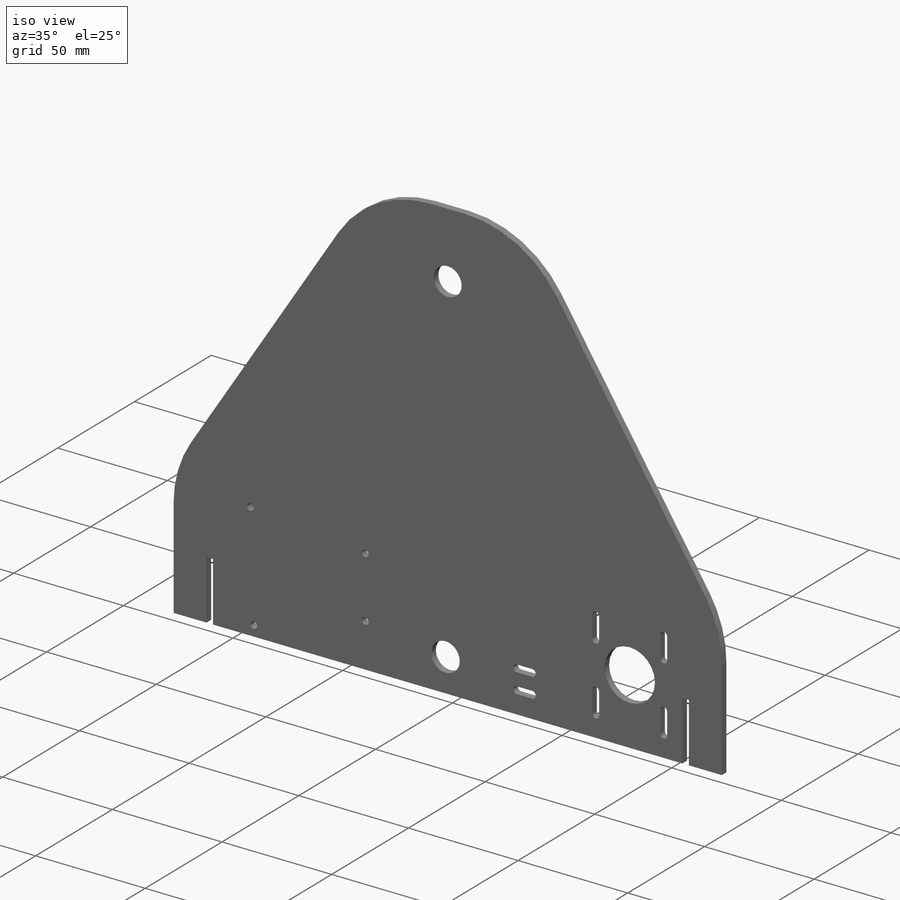
[diagram: iso view]
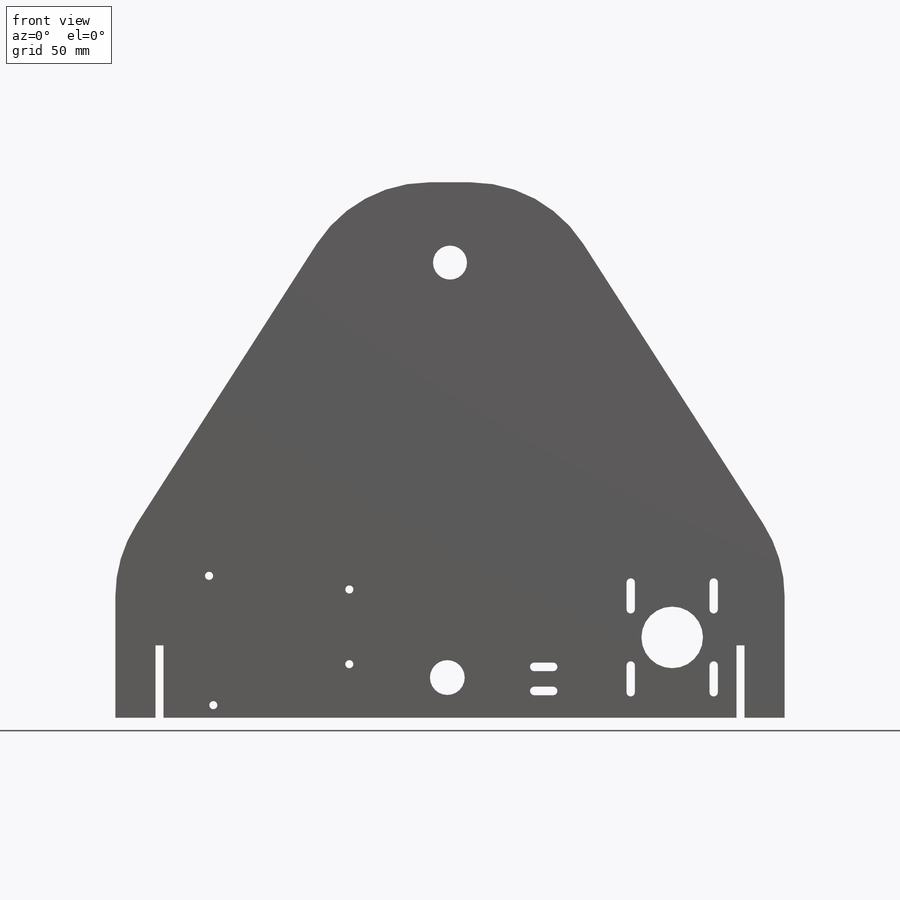
[diagram: front view]
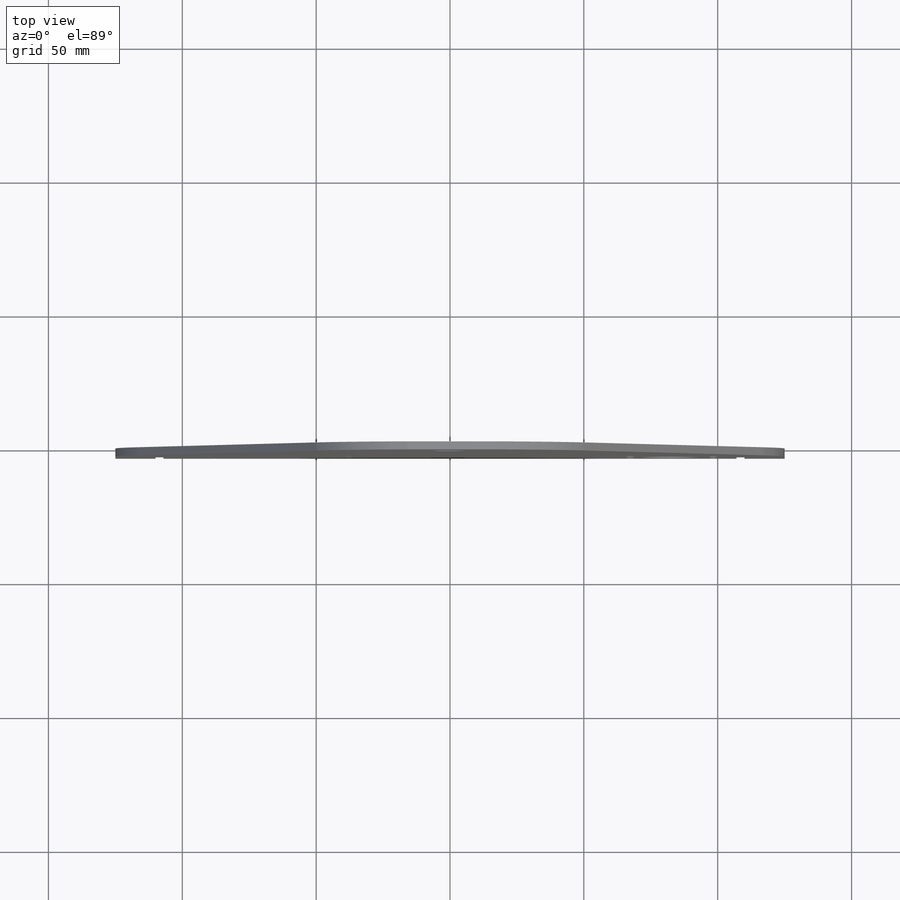
[diagram: top view]
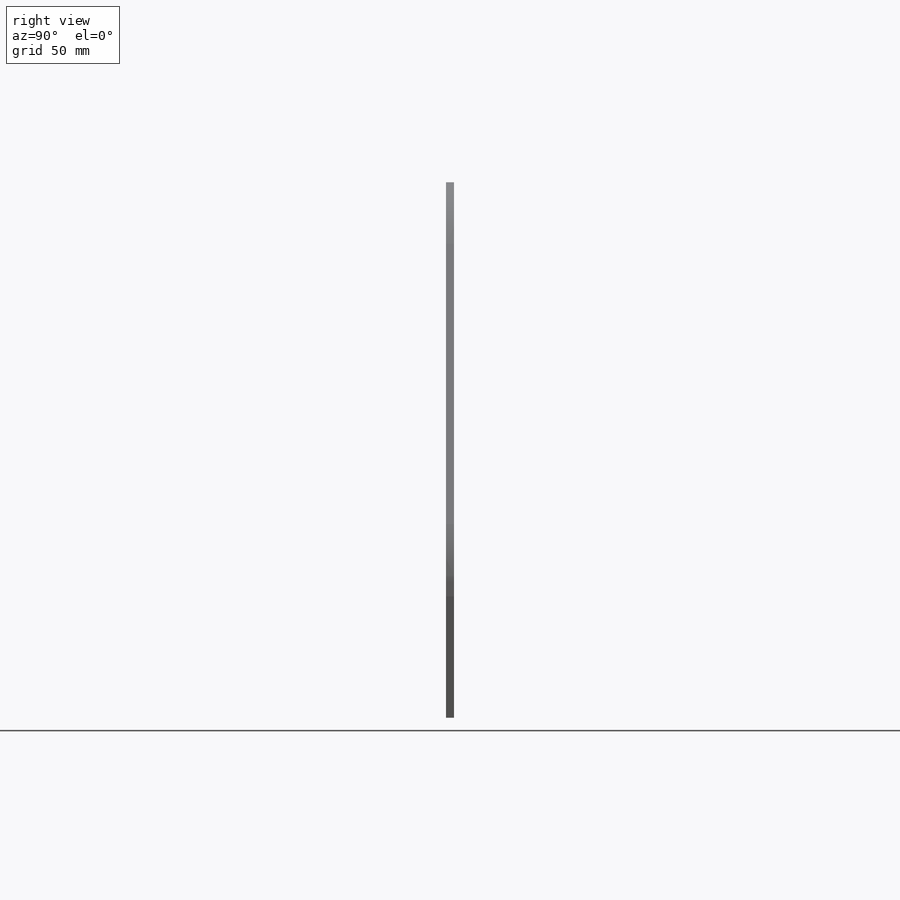
[diagram: right view]
SOLIDWORKS PART (.sldprt)
format: sldprt  version: not decoded by parser v0  size: 374,784 bytes
history: native  units: mm
features: sketch x7, cut_extrude x5, plane x3, material x1, extrude x1, fillet x1 (+8 scaffold rows collapsed)
feature tree (26):
  scaffold x8  (default folders/planes/origin — collapsed)
  material  "Material <sin especificar>"
  plane  "Alzado"
  plane  "Planta"
  plane  "Vista lateral"
  sketch  "Croquis1"  dims[D7=12.7mm D1=250.0mm D2=200.0mm D3=60.0mm D4=60.0mm D5=90.0mm D6=90.0mm D8=35.0mm D9=30.0mm]
  extrude  "Saliente-Extruir1"  Depth=3mm
  fillet  "Redondeo1"  Radius=50mm
  sketch  "Croquis2"  dims[D5=3.0mm D6=3.0mm D7=3.0mm D8=3.0mm D9=23.0mm D1=31.0mm D2=31.0mm D3=42.0mm D4=30.0mm]
  cut_extrude  "Cortar-Extruir1"  Depth=10mm
  sketch  "Croquis3"
  sketch  "Croquis6"  dims[D1=27.0mm D2=3.0mm D3=15.0mm D4=27.0mm D5=3.0mm D6=15.0mm]
  cut_extrude  "Cortar-Extruir3"  [1 undecoded]
  sketch  "Croquis7"  dims[D1=3.0mm D2=3.0mm D3=3.0mm D4=3.0mm D5=52.4mm D6=27.9mm D7=0.0mm D8=33.0mm D9=50.8mm D10=48.3mm D11=53.0mm D12=35.0mm]
  cut_extrude  "Cortar-Extruir4"  [1 undecoded]
  sketch  "Croquis8"  dims[D1=13.0mm D3=1.6mm D5=1.6mm D2=7.0mm D4=7.0mm D6=10.0mm D7=9.0mm D8=90.0mm D9=90.0mm D10=15.0mm D11=124.0mm]
  cut_extrude  "Cortar-Extruir5"  [1 undecoded]
  sketch  "Croquis9"  dims[D1=1.55mm D2=1.55mm D3=1.55mm D4=1.55mm D5=10.0mm D6=10.0mm D7=10.0mm D8=10.0mm]
  cut_extrude  "Cortar-Extruir6"  [1 undecoded]
decode coverage: 9 of 14 modeling features carry decoded parameters
note: 4 parameter values undecoded
summary: no parameter record found for 4 features
note: suppression state not decoded; provenance and decode notes live in map.json
